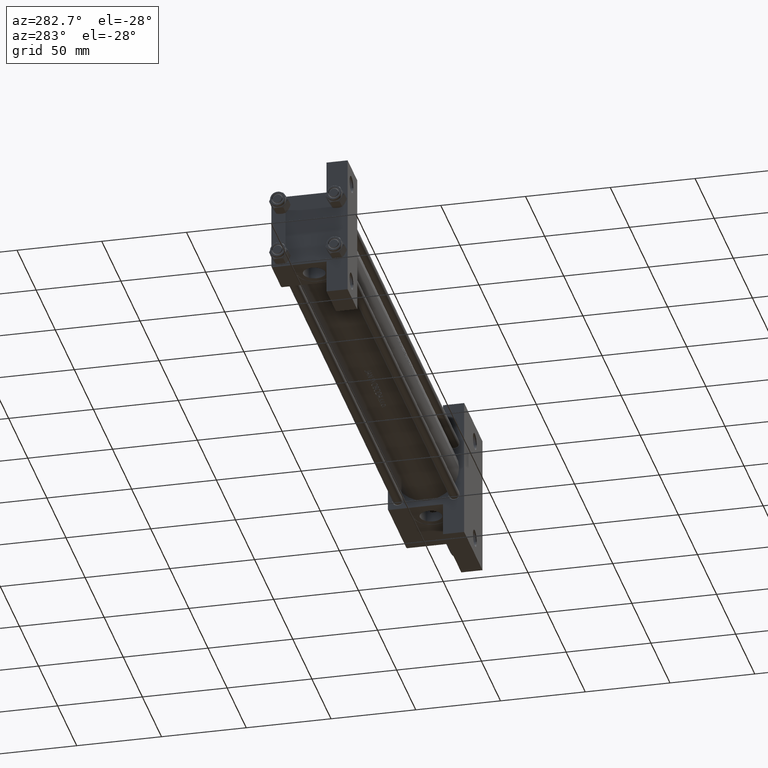
[diagram: clean part render]
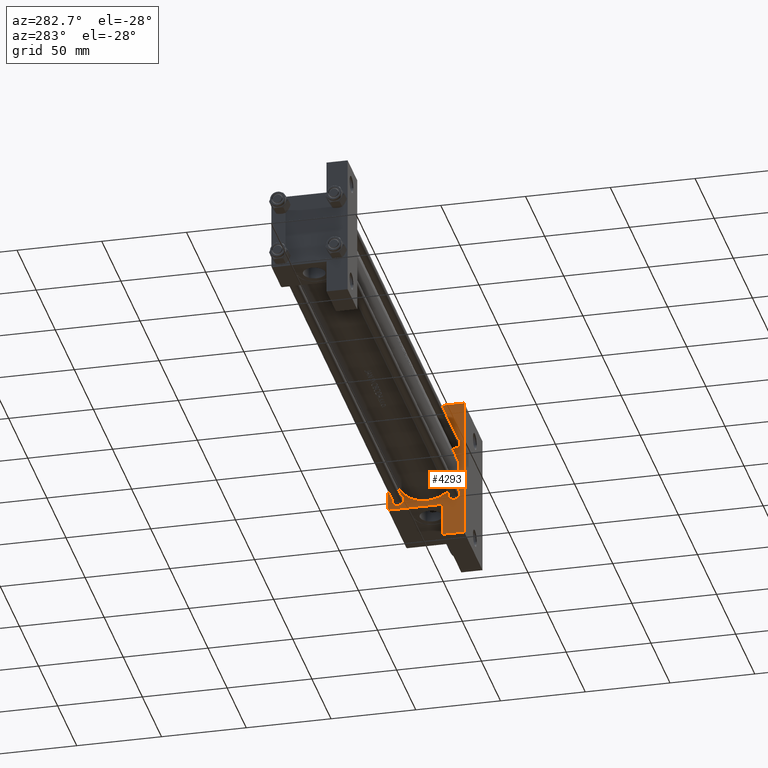
[diagram: same view with one face highlighted and labeled with its STEP entity id]
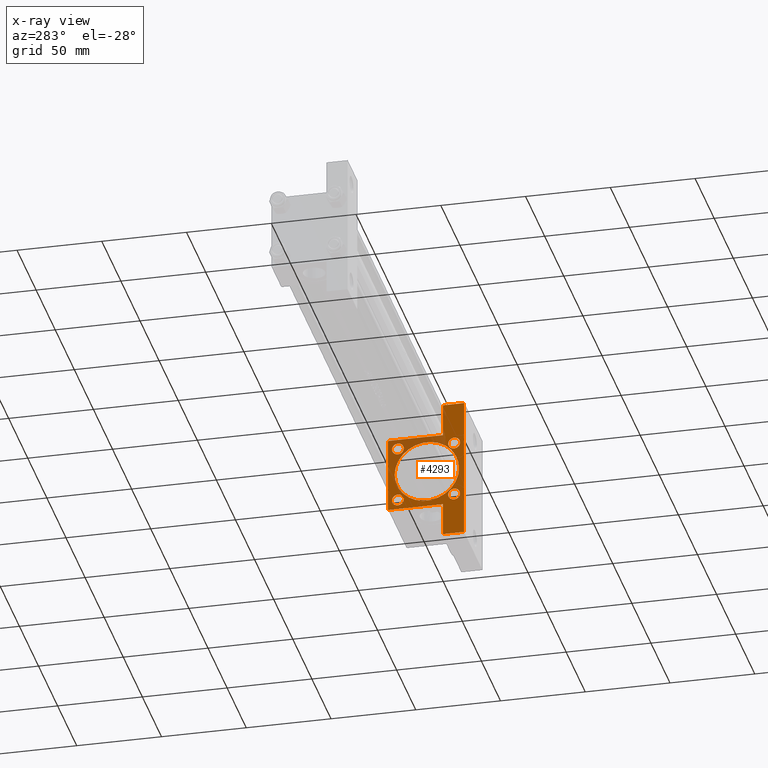
[diagram: x-ray of the same camera — body ghosted, the highlighted face saturated]
A machine part, auxiliary view. The second image highlights one B-rep face of the part: STEP entity #4293.
The next image is the same camera in x-ray: the body ghosted, the highlighted face saturated — about 19% of this face is hidden behind the body in this view.
In plain terms, the highlighted planar face has unit normal (-1, 0, -0).
Its self-contained STEP definition (entity closure, byte-faithful):
#300 = DIRECTION ( 'NONE',  ( 1.000000000000000000, 0.000000000000000000, 0.000000000000000000 ) ) ;
#350 = DIRECTION ( 'NONE',  ( -0.000000000000000000, 0.7071067811865474617, 0.7071067811865474617 ) ) ;
#899 = VERTEX_POINT ( 'NONE', #18454 ) ;
#916 = ORIENTED_EDGE ( 'NONE', *, *, #35519, .T. ) ;
#945 = DIRECTION ( 'NONE',  ( 1.000000000000000000, -0.000000000000000000, 0.000000000000000000 ) ) ;
#1111 = VECTOR ( 'NONE', #40369, 1000.000000000000000 ) ;
#1332 = DIRECTION ( 'NONE',  ( 0.000000000000000000, 0.000000000000000000, 1.000000000000000000 ) ) ;
#1487 = AXIS2_PLACEMENT_3D ( 'NONE', #20494, #23675, #28032 ) ;
#1792 = CARTESIAN_POINT ( 'NONE',  ( 305.0000000000000568, 16.59999999999999787, 20.10000000000000853 ) ) ;
#1868 = CARTESIAN_POINT ( 'NONE',  ( 305.0000000000000568, 0.000000000000000000, 18.50000000000000355 ) ) ;
#2510 = DIRECTION ( 'NONE',  ( 0.000000000000000000, 0.000000000000000000, 1.000000000000000000 ) ) ;
#2783 = CARTESIAN_POINT ( 'NONE',  ( 305.0000000000000568, -22.49999999999999645, 22.49999999999999289 ) ) ;
#2826 = EDGE_CURVE ( 'NONE', #18582, #30421, #45233, .T. ) ;
#3985 = LINE ( 'NONE', #25636, #8812 ) ;
#4109 = DIRECTION ( 'NONE',  ( 0.000000000000000000, 0.000000000000000000, 1.000000000000000000 ) ) ;
#4293 = ADVANCED_FACE ( 'NONE', ( #6080, #14576, #32086, #17509, #24803, #39600 ), #29160, .T. ) ;
#4584 = VERTEX_POINT ( 'NONE', #39307 ) ;
#5099 = EDGE_CURVE ( 'NONE', #29556, #42931, #3985, .T. ) ;
#5584 = CARTESIAN_POINT ( 'NONE',  ( 305.0000000000000568, 41.99999999999997868, -9.999999999999998224 ) ) ;
#5624 = AXIS2_PLACEMENT_3D ( 'NONE', #35565, #43099, #2510 ) ;
#5918 = VERTEX_POINT ( 'NONE', #24155 ) ;
#6080 = FACE_BOUND ( 'NONE', #34396, .T. ) ;
#6328 = VERTEX_POINT ( 'NONE', #1868 ) ;
#7041 = CARTESIAN_POINT ( 'NONE',  ( 305.0000000000000568, -16.59999999999999076, -20.10000000000001208 ) ) ;
#7332 = ORIENTED_EDGE ( 'NONE', *, *, #15365, .T. ) ;
#7342 = CARTESIAN_POINT ( 'NONE',  ( 305.0000000000000568, 41.99999999999997868, -9.999999999999998224 ) ) ;
#7382 = ORIENTED_EDGE ( 'NONE', *, *, #7972, .T. ) ;
#7618 = ORIENTED_EDGE ( 'NONE', *, *, #18126, .T. ) ;
#7791 = ORIENTED_EDGE ( 'NONE', *, *, #35437, .T. ) ;
#7972 = EDGE_CURVE ( 'NONE', #899, #9105, #41818, .T. ) ;
#8024 = AXIS2_PLACEMENT_3D ( 'NONE', #10986, #300, #15132 ) ;
#8243 = CARTESIAN_POINT ( 'NONE',  ( 305.0000000000000568, 16.59999999999999787, -16.60000000000000497 ) ) ;
#8721 = CIRCLE ( 'NONE', #5624, 3.500000000000006661 ) ;
#8812 = VECTOR ( 'NONE', #350, 1000.000000000000114 ) ;
#9105 = VERTEX_POINT ( 'NONE', #16506 ) ;
#9417 = AXIS2_PLACEMENT_3D ( 'NONE', #39081, #37721, #26311 ) ;
#9655 = AXIS2_PLACEMENT_3D ( 'NONE', #27194, #945, #34936 ) ;
#10866 = CARTESIAN_POINT ( 'NONE',  ( 305.0000000000000568, -42.00000000000003553, -9.999999999999998224 ) ) ;
#10986 = CARTESIAN_POINT ( 'NONE',  ( 305.0000000000000568, 0.000000000000000000, -0.4999999999999970024 ) ) ;
#11395 = CARTESIAN_POINT ( 'NONE',  ( 305.0000000000000568, -16.59999999999999076, 13.10000000000000142 ) ) ;
#11578 = ORIENTED_EDGE ( 'NONE', *, *, #36938, .T. ) ;
#11622 = DIRECTION ( 'NONE',  ( 0.000000000000000000, 0.7071067811865474617, -0.7071067811865474617 ) ) ;
#12075 = VECTOR ( 'NONE', #26309, 1000.000000000000000 ) ;
#12346 = VERTEX_POINT ( 'NONE', #17671 ) ;
#12510 = CARTESIAN_POINT ( 'NONE',  ( 305.0000000000000568, -16.59999999999999076, -16.60000000000000853 ) ) ;
#12671 = EDGE_CURVE ( 'NONE', #29556, #23102, #39949, .T. ) ;
#12753 = VECTOR ( 'NONE', #26134, 1000.000000000000000 ) ;
#12809 = VECTOR ( 'NONE', #22376, 1000.000000000000000 ) ;
#13063 = EDGE_CURVE ( 'NONE', #20660, #899, #14384, .T. ) ;
#13651 = CARTESIAN_POINT ( 'NONE',  ( 305.0000000000000568, 22.50000000000000355, -22.49999999999999645 ) ) ;
#14134 = ORIENTED_EDGE ( 'NONE', *, *, #17187, .F. ) ;
#14241 = CARTESIAN_POINT ( 'NONE',  ( 305.0000000000000568, -21.99999999999992539, 22.49999999999999289 ) ) ;
#14384 = LINE ( 'NONE', #29209, #1111 ) ;
#14576 = FACE_BOUND ( 'NONE', #23622, .T. ) ;
#14651 = EDGE_CURVE ( 'NONE', #12346, #47510, #27520, .T. ) ;
#15132 = DIRECTION ( 'NONE',  ( 0.000000000000000000, 0.000000000000000000, -1.000000000000000000 ) ) ;
#15365 = EDGE_CURVE ( 'NONE', #31233, #23102, #29647, .T. ) ;
#15445 = DIRECTION ( 'NONE',  ( 1.000000000000000000, -0.000000000000000000, 0.000000000000000000 ) ) ;
#15900 = VECTOR ( 'NONE', #27248, 1000.000000000000000 ) ;
#16324 = EDGE_CURVE ( 'NONE', #9105, #4584, #18775, .T. ) ;
#16506 = CARTESIAN_POINT ( 'NONE',  ( 305.0000000000000568, 41.99999999999997868, -9.999999999999998224 ) ) ;
#16569 = CIRCLE ( 'NONE', #8024, 19.00000000000000000 ) ;
#17187 = EDGE_CURVE ( 'NONE', #31233, #22097, #40764, .T. ) ;
#17509 = FACE_BOUND ( 'NONE', #20204, .T. ) ;
#17531 = VECTOR ( 'NONE', #33463, 1000.000000000000000 ) ;
#17671 = CARTESIAN_POINT ( 'NONE',  ( 305.0000000000000568, 16.59999999999999787, -20.10000000000000853 ) ) ;
#18126 = EDGE_CURVE ( 'NONE', #6328, #41008, #36937, .T. ) ;
#18454 = CARTESIAN_POINT ( 'NONE',  ( 305.0000000000000568, 22.50000000000000355, -9.999999999999984013 ) ) ;
#18582 = VERTEX_POINT ( 'NONE', #1792 ) ;
#18775 = LINE ( 'NONE', #7342, #12075 ) ;
#18931 = CIRCLE ( 'NONE', #25940, 3.500000000000006661 ) ;
#20064 = ORIENTED_EDGE ( 'NONE', *, *, #33094, .T. ) ;
#20204 = EDGE_LOOP ( 'NONE', ( #11578, #35828 ) ) ;
#20494 = CARTESIAN_POINT ( 'NONE',  ( 305.0000000000000568, 16.59999999999999787, 16.60000000000000497 ) ) ;
#20647 = AXIS2_PLACEMENT_3D ( 'NONE', #33470, #30077, #48046 ) ;
#20660 = VERTEX_POINT ( 'NONE', #40126 ) ;
#21087 = AXIS2_PLACEMENT_3D ( 'NONE', #24828, #27995, #46678 ) ;
#21145 = DIRECTION ( 'NONE',  ( -1.000000000000000000, 0.000000000000000000, -0.000000000000000000 ) ) ;
#21229 = ORIENTED_EDGE ( 'NONE', *, *, #24786, .T. ) ;
#21418 = CARTESIAN_POINT ( 'NONE',  ( 305.0000000000000568, -22.49999999999999645, 21.99999999999993605 ) ) ;
#21500 = DIRECTION ( 'NONE',  ( 0.000000000000000000, 0.000000000000000000, -1.000000000000000000 ) ) ;
#21690 = CARTESIAN_POINT ( 'NONE',  ( 305.0000000000000568, -22.50000000000000000, -9.999999999999998224 ) ) ;
#21896 = ORIENTED_EDGE ( 'NONE', *, *, #34525, .T. ) ;
#22097 = VERTEX_POINT ( 'NONE', #39362 ) ;
#22259 = LINE ( 'NONE', #36102, #12753 ) ;
#22376 = DIRECTION ( 'NONE',  ( 0.000000000000000000, 1.000000000000000000, 0.000000000000000000 ) ) ;
#22614 = ORIENTED_EDGE ( 'NONE', *, *, #38308, .T. ) ;
#23102 = VERTEX_POINT ( 'NONE', #21690 ) ;
#23622 = EDGE_LOOP ( 'NONE', ( #26776, #21229 ) ) ;
#23675 = DIRECTION ( 'NONE',  ( 1.000000000000000000, -0.000000000000000000, 0.000000000000000000 ) ) ;
#24155 = CARTESIAN_POINT ( 'NONE',  ( 305.0000000000000568, -16.59999999999999076, 20.10000000000001208 ) ) ;
#24351 = LINE ( 'NONE', #13651, #33495 ) ;
#24733 = ORIENTED_EDGE ( 'NONE', *, *, #14651, .T. ) ;
#24786 = EDGE_CURVE ( 'NONE', #30421, #18582, #43382, .T. ) ;
#24803 = FACE_BOUND ( 'NONE', #34466, .T. ) ;
#24828 = CARTESIAN_POINT ( 'NONE',  ( 305.0000000000000568, 16.59999999999999787, -16.60000000000000497 ) ) ;
#25636 = CARTESIAN_POINT ( 'NONE',  ( 305.0000000000000568, -22.24999999999996803, 22.24999999999996803 ) ) ;
#25940 = AXIS2_PLACEMENT_3D ( 'NONE', #12510, #15445, #1332 ) ;
#26004 = DIRECTION ( 'NONE',  ( 1.000000000000000000, -0.000000000000000000, 0.000000000000000000 ) ) ;
#26134 = DIRECTION ( 'NONE',  ( 0.000000000000000000, -1.000000000000000000, -2.312964634635742957E-16 ) ) ;
#26309 = DIRECTION ( 'NONE',  ( 0.000000000000000000, 0.000000000000000000, -1.000000000000000000 ) ) ;
#26311 = DIRECTION ( 'NONE',  ( 0.000000000000000000, 0.000000000000000000, 1.000000000000000000 ) ) ;
#26776 = ORIENTED_EDGE ( 'NONE', *, *, #2826, .T. ) ;
#27194 = CARTESIAN_POINT ( 'NONE',  ( 305.0000000000000568, 16.59999999999999787, 16.60000000000000497 ) ) ;
#27248 = DIRECTION ( 'NONE',  ( -0.000000000000000000, 1.000000000000000000, -0.000000000000000000 ) ) ;
#27520 = CIRCLE ( 'NONE', #36822, 3.500000000000006661 ) ;
#27995 = DIRECTION ( 'NONE',  ( 1.000000000000000000, -0.000000000000000000, 0.000000000000000000 ) ) ;
#28032 = DIRECTION ( 'NONE',  ( 0.000000000000000000, 0.000000000000000000, 1.000000000000000000 ) ) ;
#29141 = CARTESIAN_POINT ( 'NONE',  ( 305.0000000000000568, -16.59999999999999076, 16.60000000000000853 ) ) ;
#29160 = PLANE ( 'NONE',  #39820 ) ;
#29209 = CARTESIAN_POINT ( 'NONE',  ( 305.0000000000000568, 22.50000000000000355, 22.50000000000000355 ) ) ;
#29533 = CARTESIAN_POINT ( 'NONE',  ( 305.0000000000000568, -42.00000000000003553, -9.999999999999998224 ) ) ;
#29556 = VERTEX_POINT ( 'NONE', #21418 ) ;
#29647 = LINE ( 'NONE', #44456, #12809 ) ;
#30077 = DIRECTION ( 'NONE',  ( 1.000000000000000000, 0.000000000000000000, 0.000000000000000000 ) ) ;
#30421 = VERTEX_POINT ( 'NONE', #43519 ) ;
#30821 = CARTESIAN_POINT ( 'NONE',  ( 305.0000000000000568, 22.24999999999997158, 22.24999999999997158 ) ) ;
#30850 = ORIENTED_EDGE ( 'NONE', *, *, #5099, .T. ) ;
#31211 = CARTESIAN_POINT ( 'NONE',  ( 305.0000000000000568, 21.99999999999994671, 22.50000000000000355 ) ) ;
#31233 = VERTEX_POINT ( 'NONE', #29533 ) ;
#31375 = VERTEX_POINT ( 'NONE', #31211 ) ;
#32086 = FACE_BOUND ( 'NONE', #47344, .T. ) ;
#32163 = VECTOR ( 'NONE', #11622, 1000.000000000000114 ) ;
#32557 = CARTESIAN_POINT ( 'NONE',  ( 305.0000000000000568, 0.000000000000000000, 0.000000000000000000 ) ) ;
#33094 = EDGE_CURVE ( 'NONE', #5918, #40854, #35750, .T. ) ;
#33425 = AXIS2_PLACEMENT_3D ( 'NONE', #29141, #47829, #39348 ) ;
#33463 = DIRECTION ( 'NONE',  ( 0.000000000000000000, 0.000000000000000000, -1.000000000000000000 ) ) ;
#33470 = CARTESIAN_POINT ( 'NONE',  ( 305.0000000000000568, 0.000000000000000000, -0.4999999999999970024 ) ) ;
#33495 = VECTOR ( 'NONE', #39391, 1000.000000000000000 ) ;
#34331 = VERTEX_POINT ( 'NONE', #43800 ) ;
#34396 = EDGE_LOOP ( 'NONE', ( #20064, #21896 ) ) ;
#34466 = EDGE_LOOP ( 'NONE', ( #7618, #42170 ) ) ;
#34525 = EDGE_CURVE ( 'NONE', #40854, #5918, #38114, .T. ) ;
#34936 = DIRECTION ( 'NONE',  ( 0.000000000000000000, 0.000000000000000000, 1.000000000000000000 ) ) ;
#35437 = EDGE_CURVE ( 'NONE', #47510, #12346, #46701, .T. ) ;
#35519 = EDGE_CURVE ( 'NONE', #4584, #22097, #24351, .T. ) ;
#35565 = CARTESIAN_POINT ( 'NONE',  ( 305.0000000000000568, -16.59999999999999076, -16.60000000000000853 ) ) ;
#35750 = CIRCLE ( 'NONE', #33425, 3.500000000000003109 ) ;
#35828 = ORIENTED_EDGE ( 'NONE', *, *, #47028, .T. ) ;
#35962 = DIRECTION ( 'NONE',  ( -0.000000000000000000, 0.000000000000000000, 1.000000000000000000 ) ) ;
#36102 = CARTESIAN_POINT ( 'NONE',  ( 305.0000000000000568, 22.50000000000000355, 22.50000000000000355 ) ) ;
#36822 = AXIS2_PLACEMENT_3D ( 'NONE', #8243, #26004, #4109 ) ;
#36838 = ORIENTED_EDGE ( 'NONE', *, *, #12671, .F. ) ;
#36937 = CIRCLE ( 'NONE', #20647, 19.00000000000000000 ) ;
#36938 = EDGE_CURVE ( 'NONE', #34331, #45424, #8721, .T. ) ;
#37721 = DIRECTION ( 'NONE',  ( 1.000000000000000000, -0.000000000000000000, 0.000000000000000000 ) ) ;
#38114 = CIRCLE ( 'NONE', #9417, 3.500000000000003109 ) ;
#38308 = EDGE_CURVE ( 'NONE', #31375, #20660, #44668, .T. ) ;
#38993 = EDGE_LOOP ( 'NONE', ( #45965, #22614, #41541, #7382, #46484, #916, #14134, #7332, #36838, #30850 ) ) ;
#39081 = CARTESIAN_POINT ( 'NONE',  ( 305.0000000000000568, -16.59999999999999076, 16.60000000000000853 ) ) ;
#39307 = CARTESIAN_POINT ( 'NONE',  ( 305.0000000000000568, 41.99999999999997868, -22.50000000000000000 ) ) ;
#39348 = DIRECTION ( 'NONE',  ( 0.000000000000000000, 0.000000000000000000, 1.000000000000000000 ) ) ;
#39362 = CARTESIAN_POINT ( 'NONE',  ( 305.0000000000000568, -42.00000000000003553, -22.50000000000000000 ) ) ;
#39391 = DIRECTION ( 'NONE',  ( 0.000000000000000000, -1.000000000000000000, -7.709882115452476934E-17 ) ) ;
#39600 = FACE_OUTER_BOUND ( 'NONE', #38993, .T. ) ;
#39820 = AXIS2_PLACEMENT_3D ( 'NONE', #32557, #21145, #35962 ) ;
#39949 = LINE ( 'NONE', #2783, #39991 ) ;
#39991 = VECTOR ( 'NONE', #21500, 1000.000000000000000 ) ;
#40126 = CARTESIAN_POINT ( 'NONE',  ( 305.0000000000000568, 22.50000000000000355, 21.99999999999994671 ) ) ;
#40369 = DIRECTION ( 'NONE',  ( 0.000000000000000000, 0.000000000000000000, -1.000000000000000000 ) ) ;
#40764 = LINE ( 'NONE', #10866, #17531 ) ;
#40854 = VERTEX_POINT ( 'NONE', #11395 ) ;
#41008 = VERTEX_POINT ( 'NONE', #43362 ) ;
#41242 = CARTESIAN_POINT ( 'NONE',  ( 305.0000000000000568, 16.59999999999999787, -13.09999999999999787 ) ) ;
#41541 = ORIENTED_EDGE ( 'NONE', *, *, #13063, .T. ) ;
#41818 = LINE ( 'NONE', #5584, #15900 ) ;
#42170 = ORIENTED_EDGE ( 'NONE', *, *, #45144, .T. ) ;
#42931 = VERTEX_POINT ( 'NONE', #14241 ) ;
#43099 = DIRECTION ( 'NONE',  ( 1.000000000000000000, -0.000000000000000000, 0.000000000000000000 ) ) ;
#43362 = CARTESIAN_POINT ( 'NONE',  ( 305.0000000000000568, 2.326828918379970970E-15, -19.49999999999999645 ) ) ;
#43382 = CIRCLE ( 'NONE', #1487, 3.499999999999999556 ) ;
#43519 = CARTESIAN_POINT ( 'NONE',  ( 305.0000000000000568, 16.59999999999999787, 13.10000000000000142 ) ) ;
#43800 = CARTESIAN_POINT ( 'NONE',  ( 305.0000000000000568, -16.59999999999999076, -13.10000000000000142 ) ) ;
#44456 = CARTESIAN_POINT ( 'NONE',  ( 305.0000000000000568, -42.00000000000003553, -9.999999999999998224 ) ) ;
#44668 = LINE ( 'NONE', #30821, #32163 ) ;
#45144 = EDGE_CURVE ( 'NONE', #41008, #6328, #16569, .T. ) ;
#45233 = CIRCLE ( 'NONE', #9655, 3.499999999999999556 ) ;
#45424 = VERTEX_POINT ( 'NONE', #7041 ) ;
#45965 = ORIENTED_EDGE ( 'NONE', *, *, #47794, .F. ) ;
#46484 = ORIENTED_EDGE ( 'NONE', *, *, #16324, .T. ) ;
#46678 = DIRECTION ( 'NONE',  ( 0.000000000000000000, 0.000000000000000000, 1.000000000000000000 ) ) ;
#46701 = CIRCLE ( 'NONE', #21087, 3.500000000000006661 ) ;
#47028 = EDGE_CURVE ( 'NONE', #45424, #34331, #18931, .T. ) ;
#47344 = EDGE_LOOP ( 'NONE', ( #7791, #24733 ) ) ;
#47510 = VERTEX_POINT ( 'NONE', #41242 ) ;
#47794 = EDGE_CURVE ( 'NONE', #31375, #42931, #22259, .T. ) ;
#47829 = DIRECTION ( 'NONE',  ( 1.000000000000000000, -0.000000000000000000, 0.000000000000000000 ) ) ;
#48046 = DIRECTION ( 'NONE',  ( 0.000000000000000000, 0.000000000000000000, -1.000000000000000000 ) ) ;